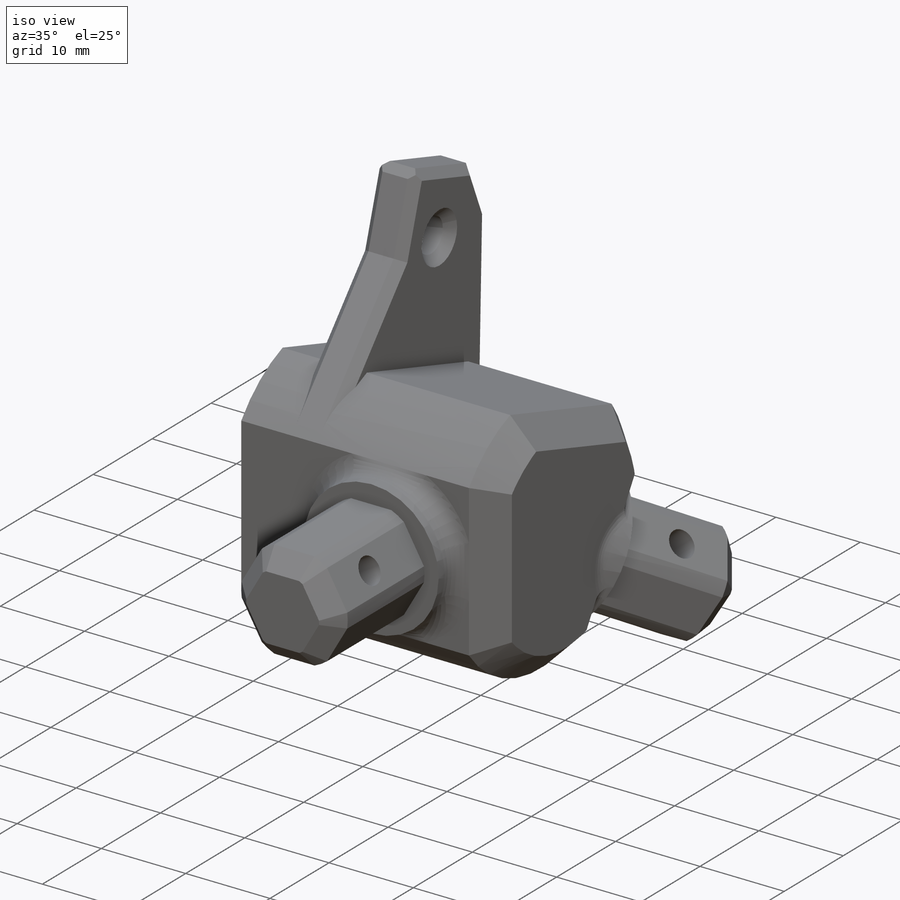
[diagram: iso view]
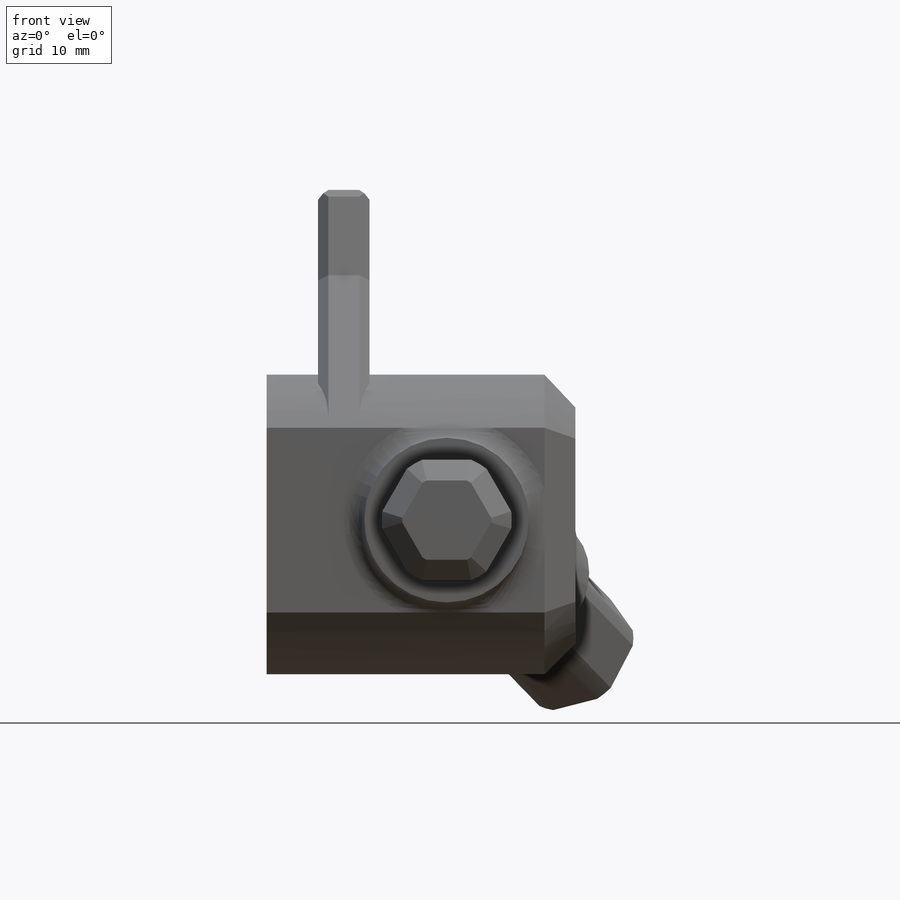
[diagram: front view]
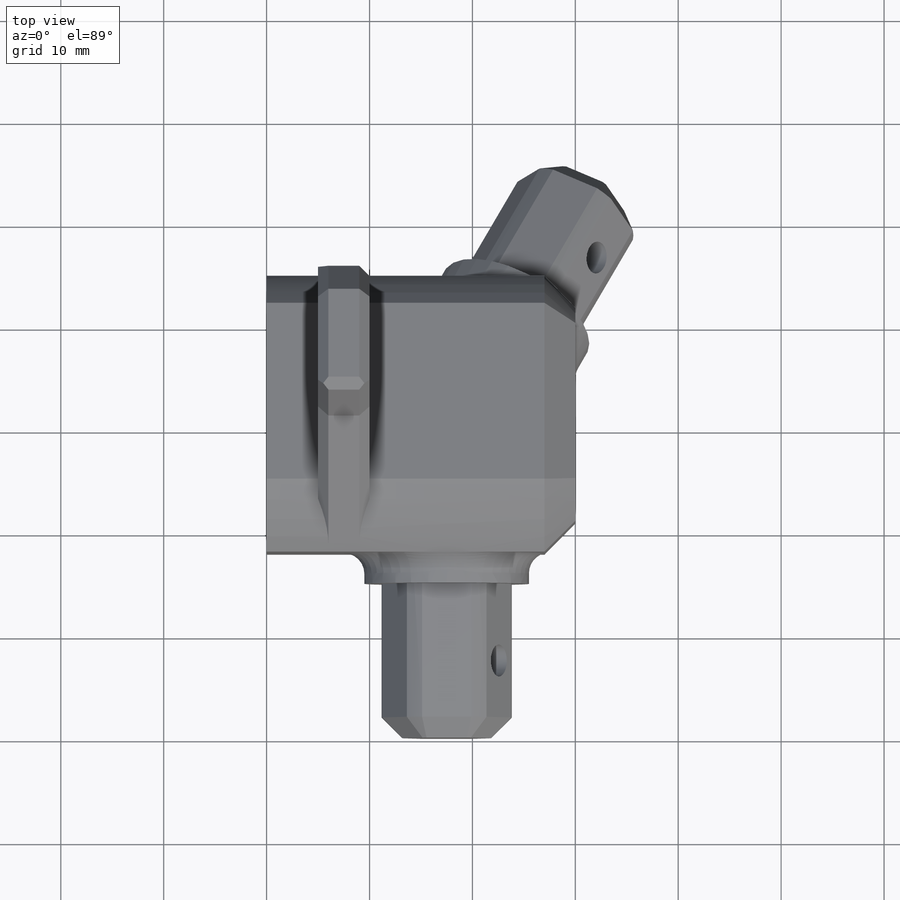
[diagram: top view]
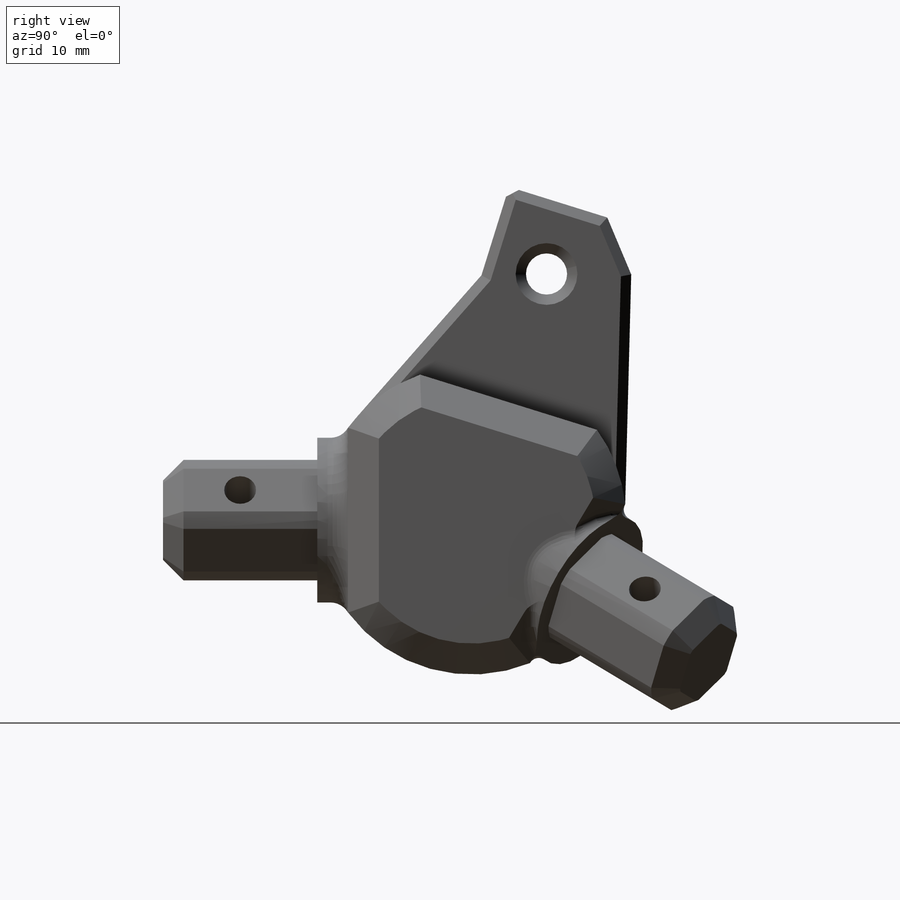
[diagram: right view]
SOLIDWORKS PART (.sldprt)
format: sldprt  version: not decoded by parser v0  size: 529,920 bytes
history: native  units: mm
features: sketch x15, extrude x7, cut_extrude x7, chamfer x5, plane x2, fillet x2, material x1 (+13 scaffold rows collapsed)
feature tree (52):
  scaffold x13  (default folders/planes/origin — collapsed)
  material  "Material <not specified>"
  sketch  "Sketch1"  dims[D1=30.0mm]
  extrude  "Boss-Extrude1"  Depth=30mm
  sketch  "3DSketch1"  dims[c1.D1=25.0mm c2.D1=25.0mm c2.D2=~30.046934mm c3.D2=~61.916739mm c4.D2=~20.323224mm c5.D2=~8.461234mm c6.D2=~70.489531mm c7.D2=~30.411507mm c8.D2=~19.679046mm]
  sketch  "Sketch8"  dims[D1=3.0mm D2=3.0mm D3=3.0mm D4=~16.29906mm]
  cut_extrude  "Cut-Extrude1"  [1 undecoded]
  plane  "Plane3"
  chamfer  "Chamfer1"  Distance=3mm Angle=45deg
  sketch  "Sketch9"  dims[D1=16.0mm]
  extrude  "Boss-Extrude5"  Depth=15mm
  plane  "Plane4"
  sketch  "Sketch11"  dims[D1=16.0mm]
  extrude  "Boss-Extrude6"  Depth=15mm
  sketch  "Sketch12"  dims[D1=12.64mm D2=11.7mm]
  extrude  "Boss-Extrude7"  Depth=15mm
  sketch  "Sketch13"  dims[D1=12.64mm D2=11.7mm D3=5.75mm]
  extrude  "Boss-Extrude8"  Depth=15mm
  chamfer  "Chamfer2"  Distance=2mm Angle=45deg
  fillet  "Fillet1"  Radius=2mm
  fillet  "Fillet2"  Radius=1mm
  sketch  "Sketch14"  dims[D1=5.0mm D2=5.0mm D3=5.0mm]
  extrude  "Boss-Extrude9"  Depth=20mm
  sketch  "Sketch16"  dims[D1=0.0mm]
  extrude  "Boss-Extrude10"  [1 undecoded]
  sketch  "Sketch15"  dims[c1.D2=3.1mm c1.D1=7.0mm c2.D2=~9.959781mm c2.D3=6.0mm c2.D4=6.0mm c2.D5=4.0mm c2.D6=9.0mm c2.D7=~0.015655mm c3.D4=6.0mm c3.D6=9.0mm c3.D7=~18.401438mm]
  cut_extrude  "Cut-Extrude2"  [1 undecoded]
  chamfer  "Chamfer5"  Distance=1mm Angle=45deg
  chamfer  "Chamfer4"  Distance=1mm Angle=45deg
  sketch  "Sketch17"  dims[D1=3.1mm D2=7.5mm]
  cut_extrude  "Cut-Extrude3"  [1 undecoded]
  sketch  "Sketch18"  dims[D1=3.1mm D2=7.5mm]
  cut_extrude  "Cut-Extrude4"  [1 undecoded]
  sketch  "Sketch19"  dims[D1=7.5mm]
  cut_extrude  "Cut-Extrude5"  [1 undecoded]
  sketch  "Sketch20"  dims[D1=13.0mm]
  cut_extrude  "Cut-Extrude6"  Depth=6mm
  sketch  "Sketch21"
  cut_extrude  "Cut-Extrude7"  Depth=6mm
  chamfer  "Chamfer6"  Distance=0.5mm Angle=45deg
decode coverage: 29 of 36 modeling features carry decoded parameters
note: ~ marks probable driven/reference dimensions
note: 6 parameter values undecoded
summary: no parameter record found for 6 features
note: suppression state not decoded; provenance and decode notes live in map.json
